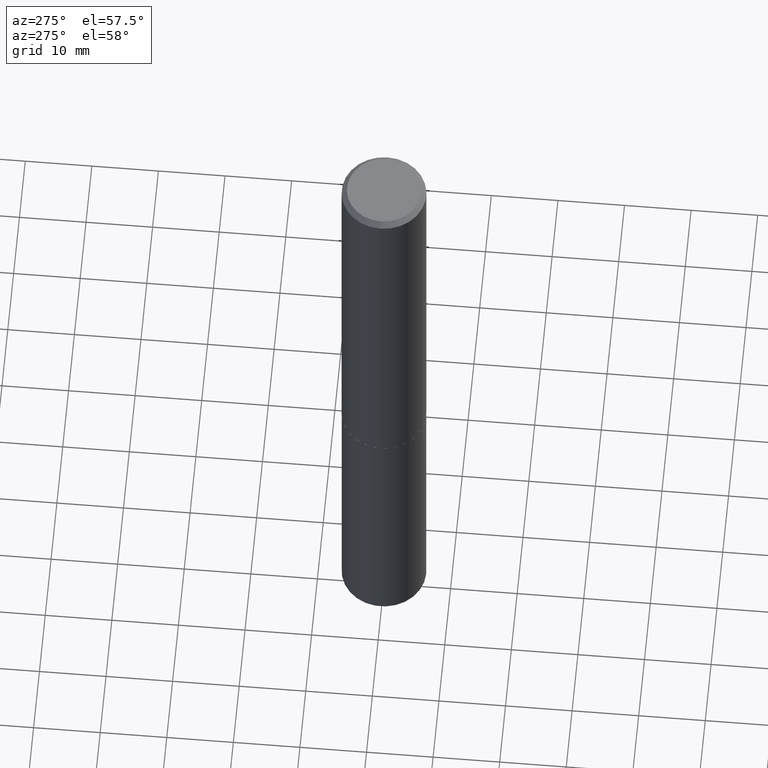
[diagram: clean part render]
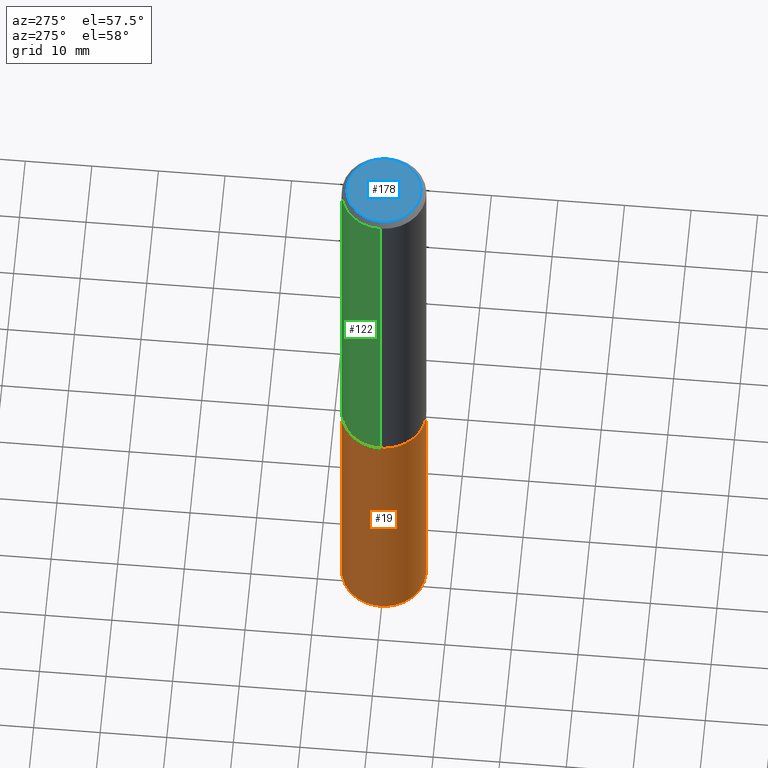
[diagram: same view with three faces highlighted in distinct colors, each labeled with its STEP entity id]
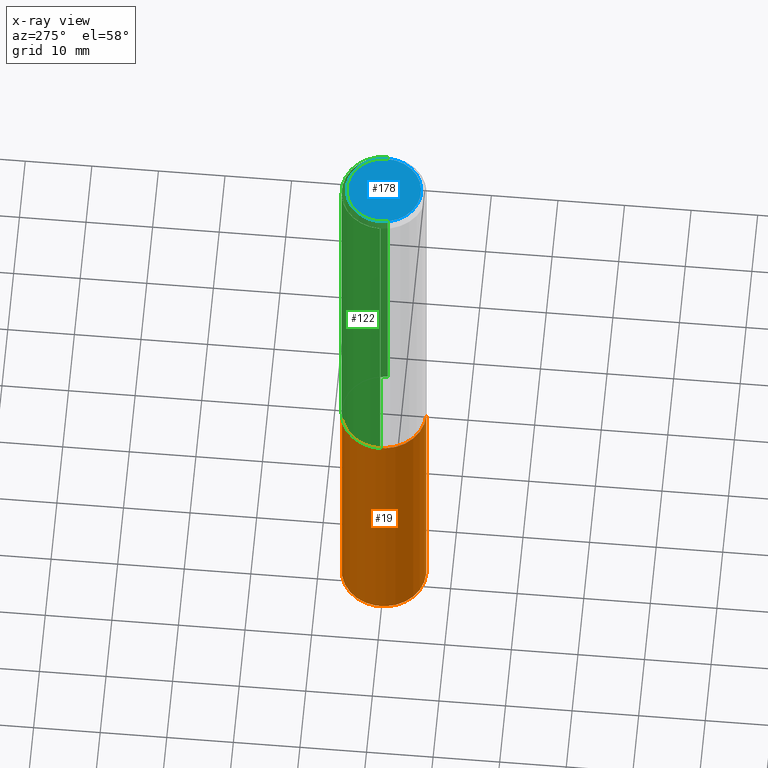
[diagram: x-ray of the same camera — body ghosted, the three highlighted faces saturated]
A machine part, auxiliary view with three faces highlighted in distinct colors.
The next image is the same camera in x-ray (body ghosted, the three faces saturated) — at least one of them is partly hidden behind the body in this view.
Their STEP definitions:

[orange] entity #19 — the highlighted cylindrical surface (partial cylindrical patch) has radius 6.35 mm, axis along (-0, 0, 1).
#9 = AXIS2_PLACEMENT_3D ( 'NONE', #269, #45, #341 ) ;
#18 = CARTESIAN_POINT ( 'NONE',  ( 1.776356839400310024E-15, 0.2499999999999915068, -2.437500000000000888 ) ) ;
#19 = ADVANCED_FACE ( 'NONE', ( #31 ), #126, .T. ) ;
#31 = FACE_OUTER_BOUND ( 'NONE', #270, .T. ) ;
#39 = CARTESIAN_POINT ( 'NONE',  ( 1.776356839400352622E-15, 0.2499999999999915068, -2.437500000000000888 ) ) ;
#45 = DIRECTION ( 'NONE',  ( -2.445705016429286457E-29, 3.491143072329270783E-15, 1.000000000000000000 ) ) ;
#57 = VERTEX_POINT ( 'NONE', #292 ) ;
#63 = CARTESIAN_POINT ( 'NONE',  ( -1.745740669421506724E-15, -0.2500000000000084932, -2.437499999999999112 ) ) ;
#75 = VERTEX_POINT ( 'NONE', #327 ) ;
#78 = ORIENTED_EDGE ( 'NONE', *, *, #357, .F. ) ;
#87 = EDGE_CURVE ( 'NONE', #75, #57, #214, .T. ) ;
#101 = DIRECTION ( 'NONE',  ( -2.445705016429286457E-29, 3.491143072329270783E-15, 1.000000000000000000 ) ) ;
#104 = LINE ( 'NONE', #18, #343 ) ;
#115 = CARTESIAN_POINT ( 'NONE',  ( 5.960830215076270455E-29, -8.510485763430166741E-15, -2.437500000000000000 ) ) ;
#126 = CYLINDRICAL_SURFACE ( 'NONE', #235, 0.2500000000000000000 ) ;
#132 = ORIENTED_EDGE ( 'NONE', *, *, #274, .T. ) ;
#156 = DIRECTION ( 'NONE',  ( -6.982962677686265922E-15, -1.000000000000000000, 3.278217592397115862E-15 ) ) ;
#166 = VERTEX_POINT ( 'NONE', #173 ) ;
#173 = CARTESIAN_POINT ( 'NONE',  ( 1.776356839400351439E-15, 0.2499999999999853728, -4.171175302780255834 ) ) ;
#198 = VERTEX_POINT ( 'NONE', #39 ) ;
#209 = CIRCLE ( 'NONE', #9, 0.2500000000000000000 ) ;
#213 = EDGE_CURVE ( 'NONE', #198, #57, #209, .T. ) ;
#214 = LINE ( 'NONE', #63, #319 ) ;
#216 = DIRECTION ( 'NONE',  ( -2.445705016429286457E-29, 3.491143072329270783E-15, 1.000000000000000000 ) ) ;
#217 = AXIS2_PLACEMENT_3D ( 'NONE', #334, #101, #307 ) ;
#228 = ORIENTED_EDGE ( 'NONE', *, *, #213, .F. ) ;
#235 = AXIS2_PLACEMENT_3D ( 'NONE', #115, #365, #156 ) ;
#251 = ORIENTED_EDGE ( 'NONE', *, *, #87, .T. ) ;
#269 = CARTESIAN_POINT ( 'NONE',  ( 5.960830215076270455E-29, -8.510485763430168319E-15, -2.437500000000000000 ) ) ;
#270 = EDGE_LOOP ( 'NONE', ( #78, #132, #251, #228 ) ) ;
#274 = EDGE_CURVE ( 'NONE', #166, #75, #389, .T. ) ;
#292 = CARTESIAN_POINT ( 'NONE',  ( -1.745740669421506724E-15, -0.2500000000000084932, -2.437499999999999556 ) ) ;
#307 = DIRECTION ( 'NONE',  ( -6.982962677686265922E-15, -1.000000000000000000, 4.370956789862821150E-15 ) ) ;
#319 = VECTOR ( 'NONE', #331, 39.37007874015748143 ) ;
#327 = CARTESIAN_POINT ( 'NONE',  ( -1.745740669421464126E-15, -0.2500000000000144884, -4.171175302780253169 ) ) ;
#331 = DIRECTION ( 'NONE',  ( -2.445705016429286457E-29, 3.491143072329270783E-15, 1.000000000000000000 ) ) ;
#334 = CARTESIAN_POINT ( 'NONE',  ( 1.020088859994550091E-28, -1.456299428639980491E-14, -4.171175302780254057 ) ) ;
#341 = DIRECTION ( 'NONE',  ( -6.982962677686265922E-15, -1.000000000000000000, 3.278217592397115862E-15 ) ) ;
#343 = VECTOR ( 'NONE', #216, 39.37007874015748143 ) ;
#357 = EDGE_CURVE ( 'NONE', #166, #198, #104, .T. ) ;
#365 = DIRECTION ( 'NONE',  ( -2.445705016429286457E-29, 3.491143072329270783E-15, 1.000000000000000000 ) ) ;
#389 = CIRCLE ( 'NONE', #217, 0.2500000000000000000 ) ;

[blue] entity #178 — the highlighted planar face has unit normal (0, -0, -1).
#32 = DIRECTION ( 'NONE',  ( -2.445468806185136597E-29, 3.491481338843145583E-15, 1.000000000000000000 ) ) ;
#62 = EDGE_CURVE ( 'NONE', #111, #351, #99, .T. ) ;
#68 = EDGE_LOOP ( 'NONE', ( #299, #71 ) ) ;
#71 = ORIENTED_EDGE ( 'NONE', *, *, #62, .T. ) ;
#97 = CARTESIAN_POINT ( 'NONE',  ( -0.2187500000000000000, 1.582077481663294210E-15, 7.654042494660087596E-18 ) ) ;
#99 = CIRCLE ( 'NONE', #211, 0.2187500000000000000 ) ;
#110 = AXIS2_PLACEMENT_3D ( 'NONE', #381, #313, #283 ) ;
#111 = VERTEX_POINT ( 'NONE', #371 ) ;
#117 = PLANE ( 'NONE',  #110 ) ;
#129 = CARTESIAN_POINT ( 'NONE',  ( -1.871772216193329992E-46, 2.672394653685610077E-32, 7.654042494670960626E-18 ) ) ;
#167 = DIRECTION ( 'NONE',  ( -2.445468806185136597E-29, 3.491481338843145583E-15, 1.000000000000000000 ) ) ;
#170 = DIRECTION ( 'NONE',  ( 1.000000000000000000, -6.982962677686266711E-15, 4.876133991931148155E-29 ) ) ;
#178 = ADVANCED_FACE ( 'NONE', ( #304 ), #117, .F. ) ;
#183 = AXIS2_PLACEMENT_3D ( 'NONE', #278, #167, #170 ) ;
#211 = AXIS2_PLACEMENT_3D ( 'NONE', #129, #32, #361 ) ;
#237 = EDGE_CURVE ( 'NONE', #351, #111, #325, .T. ) ;
#278 = CARTESIAN_POINT ( 'NONE',  ( -1.871772216193329992E-46, 2.672394653685610077E-32, 7.654042494670960626E-18 ) ) ;
#283 = DIRECTION ( 'NONE',  ( -1.000000000000000000, 6.982962677686265922E-15, -4.876176775795935793E-29 ) ) ;
#299 = ORIENTED_EDGE ( 'NONE', *, *, #237, .T. ) ;
#304 = FACE_OUTER_BOUND ( 'NONE', #68, .T. ) ;
#313 = DIRECTION ( 'NONE',  ( 2.438088387897960049E-29, -3.491481338843145188E-15, -1.000000000000000000 ) ) ;
#325 = CIRCLE ( 'NONE', #183, 0.2187500000000000000 ) ;
#351 = VERTEX_POINT ( 'NONE', #97 ) ;
#361 = DIRECTION ( 'NONE',  ( 1.000000000000000000, -6.982962677686266711E-15, 4.876133991931148155E-29 ) ) ;
#371 = CARTESIAN_POINT ( 'NONE',  ( 0.2187500000000000000, -1.662483614147127260E-15, 7.654042494682115613E-18 ) ) ;
#381 = CARTESIAN_POINT ( 'NONE',  ( -9.358861080966649959E-47, 1.336197326842805038E-32, 3.827021247335480313E-18 ) ) ;

[green] entity #122 — the highlighted cylindrical surface (partial cylindrical patch) has radius 6.35 mm, axis along (-0, 0, 1).
#4 = DIRECTION ( 'NONE',  ( 1.000000000000000000, -6.982962677686266711E-15, 0.000000000000000000 ) ) ;
#5 = ORIENTED_EDGE ( 'NONE', *, *, #379, .F. ) ;
#13 = DIRECTION ( 'NONE',  ( 1.000000000000000000, -6.982962677686266711E-15, 0.000000000000000000 ) ) ;
#17 = ORIENTED_EDGE ( 'NONE', *, *, #46, .F. ) ;
#20 = DIRECTION ( 'NONE',  ( 1.000000000000000000, -6.982962677686267499E-15, 4.876176775795936353E-29 ) ) ;
#42 = CARTESIAN_POINT ( 'NONE',  ( 5.959607480673178774E-29, -8.508740022760746027E-15, -2.437000000000000277 ) ) ;
#46 = EDGE_CURVE ( 'NONE', #279, #106, #378, .T. ) ;
#59 = AXIS2_PLACEMENT_3D ( 'NONE', #89, #185, #4 ) ;
#76 = LINE ( 'NONE', #340, #203 ) ;
#85 = ORIENTED_EDGE ( 'NONE', *, *, #206, .T. ) ;
#89 = CARTESIAN_POINT ( 'NONE',  ( 7.642090019328603538E-31, -1.091087918388490390E-16, -0.03125000000000021511 ) ) ;
#96 = VERTEX_POINT ( 'NONE', #221 ) ;
#102 = CARTESIAN_POINT ( 'NONE',  ( -0.2500000000000001110, 1.776356839400251254E-15, -1.229733772563727146E-29 ) ) ;
#105 = FACE_OUTER_BOUND ( 'NONE', #333, .T. ) ;
#106 = VERTEX_POINT ( 'NONE', #113 ) ;
#113 = CARTESIAN_POINT ( 'NONE',  ( -0.2500000000000000000, -2.532567567899545916E-15, -0.03125000000000021511 ) ) ;
#122 = ADVANCED_FACE ( 'NONE', ( #105 ), #140, .T. ) ;
#124 = AXIS2_PLACEMENT_3D ( 'NONE', #42, #163, #13 ) ;
#137 = CARTESIAN_POINT ( 'NONE',  ( 0.2500000000000000000, -1.854849461260415778E-15, -0.03125000000000021511 ) ) ;
#140 = CYLINDRICAL_SURFACE ( 'NONE', #243, 0.2500000000000001110 ) ;
#149 = VERTEX_POINT ( 'NONE', #255 ) ;
#160 = LINE ( 'NONE', #102, #262 ) ;
#163 = DIRECTION ( 'NONE',  ( -2.445468806185136597E-29, 3.491481338843145583E-15, 1.000000000000000000 ) ) ;
#185 = DIRECTION ( 'NONE',  ( -2.445468806185136597E-29, 3.491481338843145583E-15, 1.000000000000000000 ) ) ;
#194 = ORIENTED_EDGE ( 'NONE', *, *, #264, .T. ) ;
#203 = VECTOR ( 'NONE', #280, 39.37007874015748143 ) ;
#206 = EDGE_CURVE ( 'NONE', #96, #106, #160, .T. ) ;
#221 = CARTESIAN_POINT ( 'NONE',  ( -0.2500000000000002776, -6.732383183360494773E-15, -2.437000000000000277 ) ) ;
#243 = AXIS2_PLACEMENT_3D ( 'NONE', #250, #373, #20 ) ;
#250 = CARTESIAN_POINT ( 'NONE',  ( 0.000000000000000000, 0.000000000000000000, 0.000000000000000000 ) ) ;
#255 = CARTESIAN_POINT ( 'NONE',  ( 0.2500000000000002776, -1.025448069218231586E-14, -2.437000000000000277 ) ) ;
#262 = VECTOR ( 'NONE', #272, 39.37007874015748143 ) ;
#264 = EDGE_CURVE ( 'NONE', #149, #96, #306, .T. ) ;
#272 = DIRECTION ( 'NONE',  ( -2.445468806185136877E-29, 3.491481338843145188E-15, 1.000000000000000000 ) ) ;
#279 = VERTEX_POINT ( 'NONE', #137 ) ;
#280 = DIRECTION ( 'NONE',  ( -2.445468806185136877E-29, 3.491481338843145188E-15, 1.000000000000000000 ) ) ;
#306 = CIRCLE ( 'NONE', #124, 0.2500000000000002776 ) ;
#333 = EDGE_LOOP ( 'NONE', ( #194, #85, #17, #5 ) ) ;
#340 = CARTESIAN_POINT ( 'NONE',  ( 0.2500000000000001110, -1.745740669421567664E-15, 1.219044193948984649E-29 ) ) ;
#373 = DIRECTION ( 'NONE',  ( -2.445468806185136597E-29, 3.491481338843145583E-15, 1.000000000000000000 ) ) ;
#378 = CIRCLE ( 'NONE', #59, 0.2500000000000000000 ) ;
#379 = EDGE_CURVE ( 'NONE', #149, #279, #76, .T. ) ;